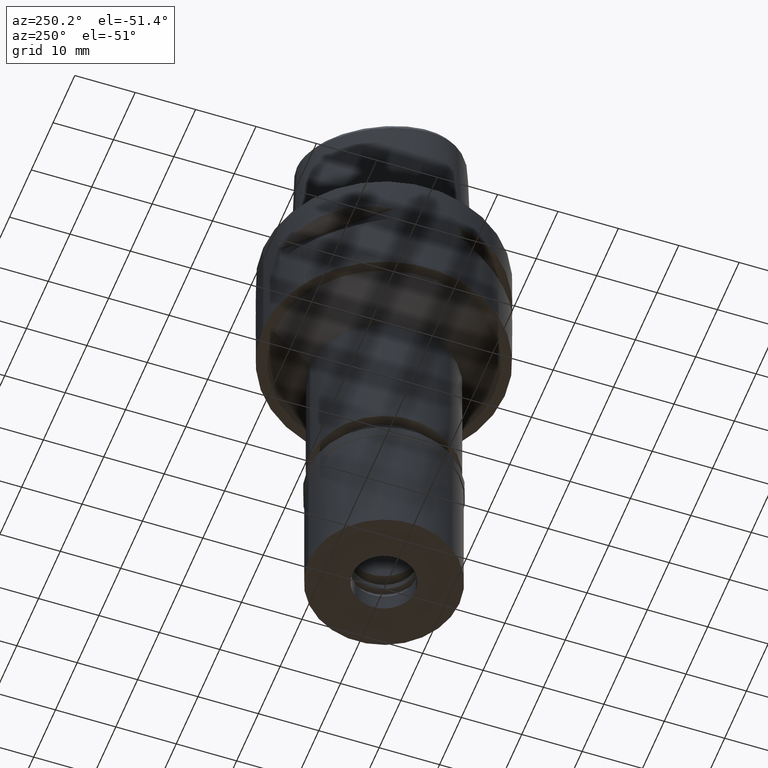
[diagram: clean part render]
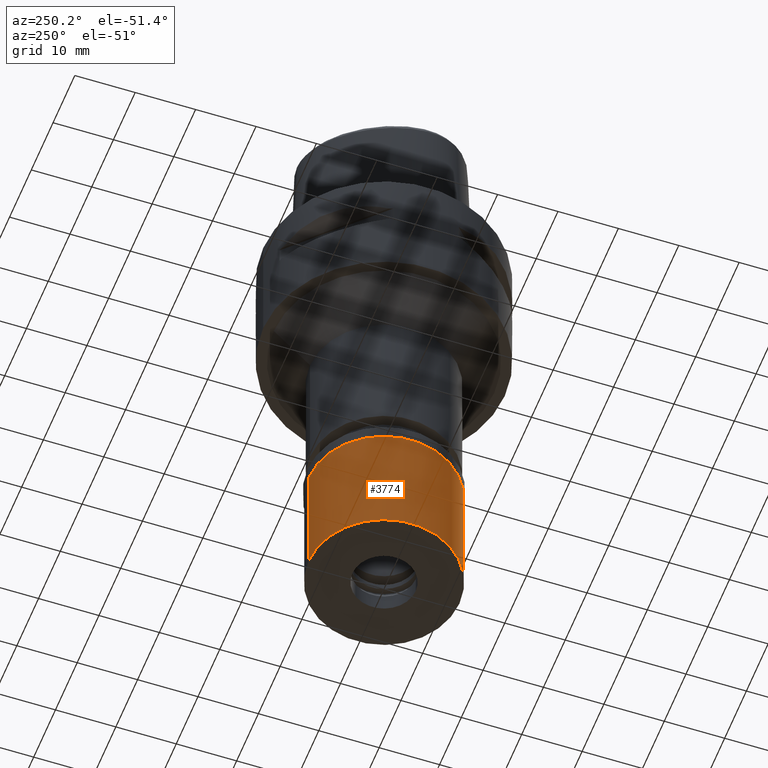
[diagram: same view with one face highlighted and labeled with its STEP entity id]
A machine part, auxiliary view. The second image highlights one B-rep face of the part: STEP entity #3774.
In plain terms, the highlighted cylindrical surface (partial cylindrical patch) has radius 12.5 mm, axis along (0, 0, -1).
Its self-contained STEP definition (entity closure, byte-faithful):
#5 = AXIS2_PLACEMENT_3D ( 'NONE', #1885, #835, #3351 ) ;
#105 = LINE ( 'NONE', #2604, #1356 ) ;
#504 = DIRECTION ( 'NONE',  ( 0.0000000000000000000, 0.0000000000000000000, -1.000000000000000000 ) ) ;
#528 = VERTEX_POINT ( 'NONE', #2396 ) ;
#614 = ORIENTED_EDGE ( 'NONE', *, *, #4571, .F. ) ;
#835 = DIRECTION ( 'NONE',  ( 0.0000000000000000000, 0.0000000000000000000, -1.000000000000000000 ) ) ;
#864 = DIRECTION ( 'NONE',  ( 0.0000000000000000000, 0.0000000000000000000, -1.000000000000000000 ) ) ;
#994 = CIRCLE ( 'NONE', #2041, 12.50000000000000000 ) ;
#1261 = DIRECTION ( 'NONE',  ( 0.0000000000000000000, 0.0000000000000000000, -1.000000000000000000 ) ) ;
#1353 = EDGE_CURVE ( 'NONE', #2811, #528, #4358, .T. ) ;
#1356 = VECTOR ( 'NONE', #864, 1000.000000000000000 ) ;
#1465 = CARTESIAN_POINT ( 'NONE',  ( 0.0000000000000000000, -12.50000000000000000, -22.89999999999999858 ) ) ;
#1504 = CARTESIAN_POINT ( 'NONE',  ( 0.0000000000000000000, -12.50000000000000000, -2.100000000000000089 ) ) ;
#1519 = VECTOR ( 'NONE', #1261, 1000.000000000000000 ) ;
#1885 = CARTESIAN_POINT ( 'NONE',  ( 0.0000000000000000000, 0.0000000000000000000, 0.0000000000000000000 ) ) ;
#1953 = AXIS2_PLACEMENT_3D ( 'NONE', #3038, #504, #2645 ) ;
#1995 = VERTEX_POINT ( 'NONE', #1465 ) ;
#2041 = AXIS2_PLACEMENT_3D ( 'NONE', #2840, #3068, #2331 ) ;
#2137 = ORIENTED_EDGE ( 'NONE', *, *, #2701, .T. ) ;
#2331 = DIRECTION ( 'NONE',  ( 0.0000000000000000000, 1.000000000000000000, 0.0000000000000000000 ) ) ;
#2396 = CARTESIAN_POINT ( 'NONE',  ( 0.0000000000000000000, 12.50000000000000000, -2.100000000000000089 ) ) ;
#2444 = EDGE_LOOP ( 'NONE', ( #4493, #614, #3511, #2137 ) ) ;
#2598 = FACE_OUTER_BOUND ( 'NONE', #2444, .T. ) ;
#2604 = CARTESIAN_POINT ( 'NONE',  ( 0.0000000000000000000, 12.50000000000000000, -2.100000000000000089 ) ) ;
#2645 = DIRECTION ( 'NONE',  ( 0.0000000000000000000, -1.000000000000000000, 0.0000000000000000000 ) ) ;
#2701 = EDGE_CURVE ( 'NONE', #528, #4599, #105, .T. ) ;
#2798 = CARTESIAN_POINT ( 'NONE',  ( 0.0000000000000000000, -12.50000000000000000, -2.100000000000000089 ) ) ;
#2811 = VERTEX_POINT ( 'NONE', #1504 ) ;
#2840 = CARTESIAN_POINT ( 'NONE',  ( 0.0000000000000000000, 0.0000000000000000000, -22.89999999999999858 ) ) ;
#3032 = EDGE_CURVE ( 'NONE', #4599, #1995, #994, .T. ) ;
#3038 = CARTESIAN_POINT ( 'NONE',  ( 0.0000000000000000000, 0.0000000000000000000, -2.100000000000000089 ) ) ;
#3068 = DIRECTION ( 'NONE',  ( 0.0000000000000000000, 0.0000000000000000000, 1.000000000000000000 ) ) ;
#3116 = CARTESIAN_POINT ( 'NONE',  ( 0.0000000000000000000, 12.50000000000000000, -22.89999999999999858 ) ) ;
#3351 = DIRECTION ( 'NONE',  ( 0.0000000000000000000, -1.000000000000000000, 0.0000000000000000000 ) ) ;
#3505 = LINE ( 'NONE', #2798, #1519 ) ;
#3511 = ORIENTED_EDGE ( 'NONE', *, *, #1353, .T. ) ;
#3736 = CYLINDRICAL_SURFACE ( 'NONE', #5, 12.50000000000000000 ) ;
#3774 = ADVANCED_FACE ( 'NONE', ( #2598 ), #3736, .T. ) ;
#4358 = CIRCLE ( 'NONE', #1953, 12.50000000000000000 ) ;
#4493 = ORIENTED_EDGE ( 'NONE', *, *, #3032, .T. ) ;
#4571 = EDGE_CURVE ( 'NONE', #2811, #1995, #3505, .T. ) ;
#4599 = VERTEX_POINT ( 'NONE', #3116 ) ;